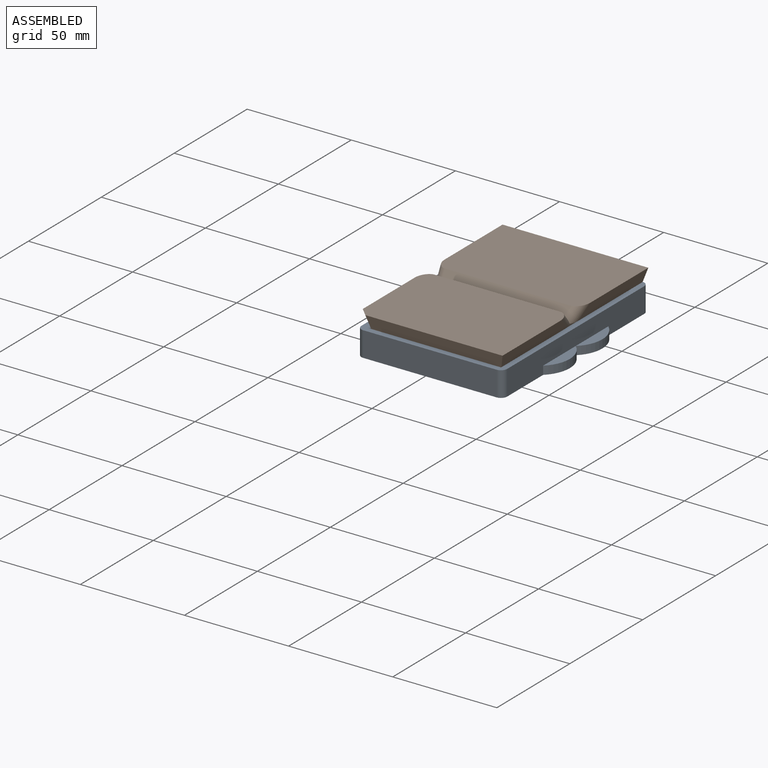
[diagram: assembled view]
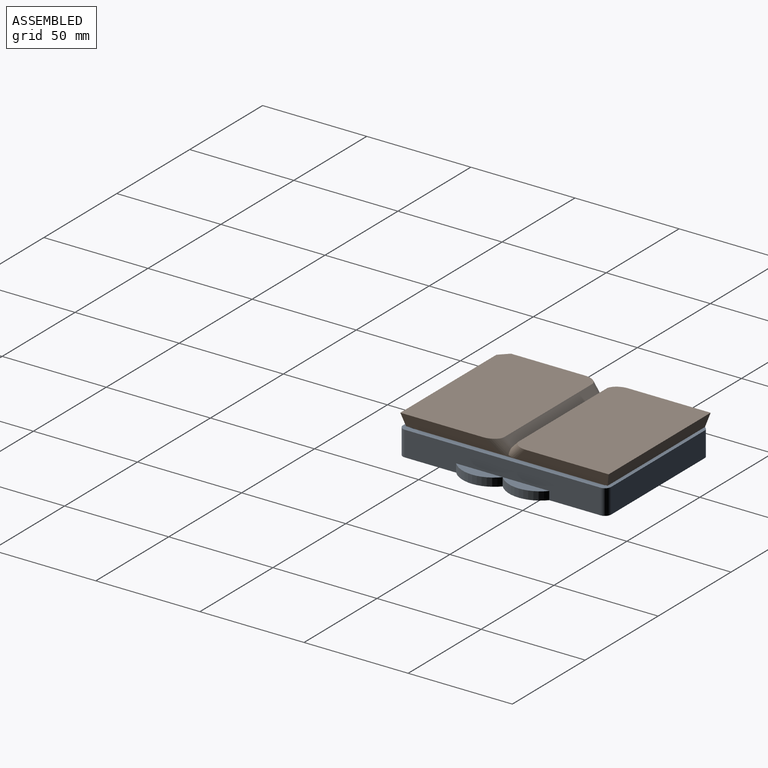
[diagram: assembled view, second angle]
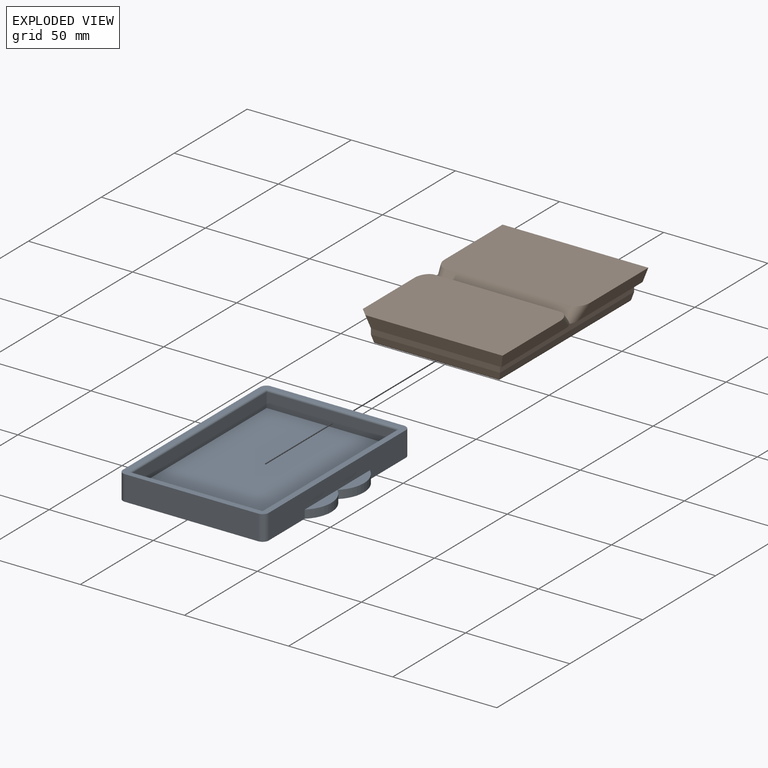
[diagram: exploded view]
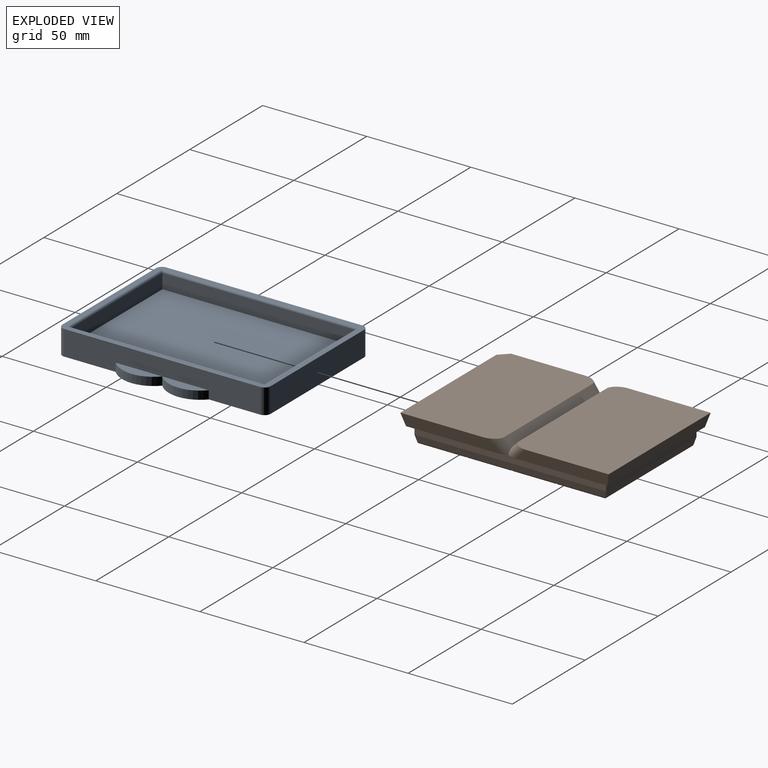
[diagram: exploded view, second angle]
ASSEMBLY  parts=2 mates=2
PART A: 27 faces, bbox 80x100x12 mm
  f0: plane 94x12mm, normal (-1,0,0), area 949.1mm2, adj f1,f5,f12,f13,f17,f18,f21,f22
  f1: plane 100x70mm, normal (0,0,1), area 817.3mm2, adj f0,f2,f3,f4,f11,f12,f13,f14
  f2: plane 94x12mm, normal (1,0,0), area 949.1mm2, adj f1,f5,f11,f14,f15,f16,f19,f20
  f3: plane 64x12mm, normal (0,1,0), area 768mm2, adj f1,f5,f11,f12
  f4: plane 64x12mm, normal (0,-1,0), area 768mm2, adj f1,f5,f13,f14
  f5: plane 100x80mm, normal (0,0,-1), area 7302mm2, adj f0,f2,f3,f4,f11,f12,f13,f14
  f6: plane 93x7mm, normal (-1,0,0), area 651mm2, adj f7,f9,f10,f23
  f7: plane 63x7mm, normal (0,-1,0), area 441mm2, adj f6,f8,f10,f24
  f8: plane 93x7mm, normal (1,0,0), area 651mm2, adj f7,f9,f10,f26
  f9: plane 63x7mm, normal (0,1,0), area 441mm2, adj f6,f8,f10,f25
  f10: plane 93x63mm, normal (0,0,1), area 5859mm2, adj f6,f7,f8,f9
  f11: cylinder r=3mm len=12mm, axis (0,0,1), area 56.5mm2, adj f1,f2,f3,f5
  f12: cylinder r=3mm len=12mm, axis (0,0,-1), area 56.5mm2, adj f0,f1,f3,f5
  f13: cylinder r=3mm len=12mm, axis (0,0,1), area 56.5mm2, adj f0,f1,f4,f5
  f14: cylinder r=3mm len=12mm, axis (0,0,-1), area 56.5mm2, adj f1,f2,f4,f5
  f15: cylinder r=15mm len=22.36mm, axis (0,0,-1), area 100.9mm2, adj f2,f5,f16,f19
  f16: plane 22.36x5mm, normal (0,0,1), area 77.4mm2, adj f2,f15
  f17: cylinder r=15mm len=22.36mm, axis (0,0,-1), area 100.9mm2, adj f0,f5,f18,f21
  f18: plane 22.36x5mm, normal (0,0,1), area 77.4mm2, adj f0,f17
  f19: cylinder r=15mm len=22.36mm, axis (0,0,-1), area 100.9mm2, adj f2,f5,f15,f20
  f20: plane 22.36x5mm, normal (0,0,1), area 77.4mm2, adj f2,f19
  f21: cylinder r=15mm len=22.36mm, axis (0,0,-1), area 100.9mm2, adj f0,f5,f17,f22
  f22: plane 22.36x5mm, normal (0,0,1), area 77.4mm2, adj f0,f21
  f23: cylinder r=1mm len=95mm, axis (0,-1,0), area 147.2mm2, adj f1,f6,f24,f25
  f24: cylinder r=1mm len=65mm, axis (1,0,0), area 100.1mm2, adj f1,f7,f23,f26
  f25: cylinder r=1mm len=65mm, axis (-1,0,0), area 100.1mm2, adj f1,f9,f23,f26
  f26: cylinder r=1mm len=95mm, axis (0,1,0), area 147.2mm2, adj f1,f8,f24,f25
PART B: 362 faces, bbox 70.1x100x17.9 mm
  f0: plane 45.81x6mm, normal (-0.97,0,0.26), area 260.9mm2, adj f9,f12,f13,f361
  f1: plane 45.81x6mm, normal (0.97,0,0.26), area 260.9mm2, adj f9,f12,f13,f359
  f2: plane 58.44x19.63mm, normal (0,0,1), area 336.4mm2, adj f5,f6,f215,f216,f217,f218,f219,f220
  f3: plane 58.44x21.79mm, normal (0,0,1), area 462.2mm2, adj f5,f6,f199,f200,f201,f202,f204,f205
  f4: plane 58.44x19.63mm, normal (0,0,1), area 336.4mm2, adj f5,f6,f271,f273,f274,f276,f277,f278
  f5: cylinder r=1mm len=90.38mm, axis (0,-1,0), area 114.9mm2, adj f2,f3,f4,f162,f346,f349,f350,f351
  f6: cylinder r=1mm len=90.38mm, axis (0,-1,0), area 114.9mm2, adj f2,f3,f4,f162,f343,f349,f350,f351
  f7: plane 70x46.5mm, normal (0,0,-1), area 3231.5mm2, adj f8,f10,f11,f348,f357,f358,f360
  f8: plane 41.68x6mm, normal (0.97,0,0.26), area 235.2mm2, adj f7,f12,f357,f358
  f9: plane 70x6mm, normal (0,0.97,0.26), area 424.8mm2, adj f0,f1,f12,f13
  f10: plane 45.81x6mm, normal (-0.97,0,0.26), area 260.9mm2, adj f7,f11,f12,f360
  f11: plane 65.87x6mm, normal (0,-0.97,0.26), area 399.2mm2, adj f7,f10,f12,f357
  f12: plane 96.78x66.78mm, normal (0,0,1), area 744.7mm2, adj f0,f1,f8,f9,f10,f11,f122,f123
  f13: plane 70x46.5mm, normal (0,0,-1), area 3240mm2, adj f0,f1,f9,f347,f359,f361
  f14: plane 15x4mm, normal (0,-1,0), area 60mm2, adj f15,f161,f163,f336
  f15: plane 4x3.3mm, normal (-1,0,0), area 13.2mm2, adj f14,f16,f163,f335
  f16: plane 15x4mm, normal (0,1,0), area 60mm2, adj f15,f161,f163,f337
  f17: plane 15x4mm, normal (0,-1,0), area 60mm2, adj f18,f125,f198,f332
  f18: plane 4x3.3mm, normal (-1,0,0), area 13.2mm2, adj f17,f19,f198,f331
  f19: plane 15x4mm, normal (0,1,0), area 60mm2, adj f18,f125,f198,f333
  f20: plane 4x3.3mm, normal (-1,0,0), area 13.2mm2, adj f21,f126,f197,f328
  f21: plane 15x4mm, normal (0,1,0), area 60mm2, adj f20,f22,f197,f327
  f22: plane 4x3.3mm, normal (1,0,0), area 13.2mm2, adj f21,f126,f197,f329
  f23: plane 4x3.3mm, normal (-1,0,0), area 13.2mm2, adj f24,f127,f196,f300
  f24: plane 15x4mm, normal (0,1,0), area 60mm2, adj f23,f25,f196,f299
  f25: plane 4x3.3mm, normal (1,0,0), area 13.2mm2, adj f24,f127,f196,f301
  f26: plane 4x3.3mm, normal (1,0,0), area 13.2mm2, adj f27,f128,f195,f296
  f27: plane 15x4mm, normal (0,-1,0), area 60mm2, adj f26,f28,f195,f295
  f28: plane 4x3.3mm, normal (-1,0,0), area 13.2mm2, adj f27,f128,f195,f297
  f29: plane 15x4mm, normal (0,1,0), area 60mm2, adj f30,f129,f194,f275
  f30: plane 4x3.3mm, normal (1,0,0), area 13.2mm2, adj f29,f31,f194,f276
  f31: plane 15x4mm, normal (0,-1,0), area 60mm2, adj f30,f129,f194,f278
  f32: plane 15x4mm, normal (0,1,0), area 60mm2, adj f33,f130,f193,f272
  f33: plane 4x3.3mm, normal (1,0,0), area 13.2mm2, adj f32,f34,f193,f271
  f34: plane 15x4mm, normal (0,-1,0), area 60mm2, adj f33,f130,f193,f273
  f35: plane 4x3.3mm, normal (-1,0,0), area 13.2mm2, adj f36,f131,f192,f264
  f36: plane 15x4mm, normal (0,1,0), area 60mm2, adj f35,f37,f192,f263
  f37: plane 4x3.3mm, normal (1,0,0), area 13.2mm2, adj f36,f131,f192,f265
  f38: plane 4x3.3mm, normal (-1,0,0), area 13.2mm2, adj f39,f132,f191,f252
  f39: plane 15x4mm, normal (0,1,0), area 60mm2, adj f38,f40,f191,f251
  f40: plane 4x3.3mm, normal (1,0,0), area 13.2mm2, adj f39,f132,f191,f253
  f41: plane 4x3.3mm, normal (1,0,0), area 13.2mm2, adj f42,f133,f190,f248
  f42: plane 15x4mm, normal (0,-1,0), area 60mm2, adj f41,f43,f190,f247
  f43: plane 4x3.3mm, normal (-1,0,0), area 13.2mm2, adj f42,f133,f190,f249
  f44: plane 4x3.3mm, normal (-1,0,0), area 13.2mm2, adj f45,f134,f189,f240
  f45: plane 15x4mm, normal (0,1,0), area 60mm2, adj f44,f46,f189,f239
  f46: plane 4x3.3mm, normal (1,0,0), area 13.2mm2, adj f45,f134,f189,f241
  f47: plane 4x3.3mm, normal (-1,0,0), area 13.2mm2, adj f48,f135,f188,f236
  f48: plane 15x4mm, normal (0,1,0), area 60mm2, adj f47,f49,f188,f235
  f49: plane 4x3.3mm, normal (1,0,0), area 13.2mm2, adj f48,f135,f188,f237
  f50: plane 4x3.3mm, normal (-1,0,0), area 13.2mm2, adj f51,f136,f187,f228
  f51: plane 15x4mm, normal (0,1,0), area 60mm2, adj f50,f52,f187,f227
  f52: plane 4x3.3mm, normal (1,0,0), area 13.2mm2, adj f51,f136,f187,f229
  f53: plane 4x3.3mm, normal (1,0,0), area 13.2mm2, adj f54,f137,f186,f220
  f54: plane 15x4mm, normal (0,-1,0), area 60mm2, adj f53,f55,f186,f219
  f55: plane 4x3.3mm, normal (-1,0,0), area 13.2mm2, adj f54,f137,f186,f221
  f56: plane 4x3.3mm, normal (-1,0,0), area 13.2mm2, adj f57,f138,f185,f208
  f57: plane 15x4mm, normal (0,1,0), area 60mm2, adj f56,f58,f185,f207
  f58: plane 4x3.3mm, normal (1,0,0), area 13.2mm2, adj f57,f138,f185,f209
  f59: plane 4x3.3mm, normal (1,0,0), area 13.2mm2, adj f60,f139,f184,f204
  f60: plane 15x4mm, normal (0,-1,0), area 60mm2, adj f59,f61,f184,f203
  f61: plane 4x3.3mm, normal (-1,0,0), area 13.2mm2, adj f60,f139,f184,f205
  f62: plane 15x4mm, normal (0,1,0), area 60mm2, adj f63,f140,f183,f199
  f63: plane 4x3.3mm, normal (1,0,0), area 13.2mm2, adj f62,f64,f183,f200
  f64: plane 15x4mm, normal (0,-1,0), area 60mm2, adj f63,f140,f183,f202
  f65: plane 15x4mm, normal (0,-1,0), area 60mm2, adj f66,f141,f182,f211
  f66: plane 4x3.3mm, normal (-1,0,0), area 13.2mm2, adj f65,f67,f182,f212
  f67: plane 15x4mm, normal (0,1,0), area 60mm2, adj f66,f141,f182,f214
  f68: plane 15x4mm, normal (0,-1,0), area 60mm2, adj f69,f142,f181,f215
  f69: plane 4x3.3mm, normal (-1,0,0), area 13.2mm2, adj f68,f70,f181,f216
  f70: plane 15x4mm, normal (0,1,0), area 60mm2, adj f69,f142,f181,f218
  f71: plane 15x4mm, normal (0,-1,0), area 60mm2, adj f72,f143,f180,f223
  f72: plane 4x3.3mm, normal (-1,0,0), area 13.2mm2, adj f71,f73,f180,f224
  f73: plane 15x4mm, normal (0,1,0), area 60mm2, adj f72,f143,f180,f226
  f74: plane 15x4mm, normal (0,-1,0), area 60mm2, adj f75,f144,f179,f231
  f75: plane 4x3.3mm, normal (-1,0,0), area 13.2mm2, adj f74,f76,f179,f232
  f76: plane 15x4mm, normal (0,1,0), area 60mm2, adj f75,f144,f179,f234
  f77: plane 15x4mm, normal (0,1,0), area 60mm2, adj f78,f145,f178,f243
  f78: plane 4x3.3mm, normal (1,0,0), area 13.2mm2, adj f77,f79,f178,f244
  f79: plane 15x4mm, normal (0,-1,0), area 60mm2, adj f78,f145,f178,f246
  f80: plane 15x4mm, normal (0,-1,0), area 60mm2, adj f81,f146,f177,f255
  f81: plane 4x3.3mm, normal (-1,0,0), area 13.2mm2, adj f80,f82,f177,f256
  f82: plane 15x4mm, normal (0,1,0), area 60mm2, adj f81,f146,f177,f258
  f83: plane 15x4mm, normal (0,1,0), area 60mm2, adj f84,f147,f176,f259
  f84: plane 4x3.3mm, normal (1,0,0), area 13.2mm2, adj f83,f85,f176,f260
  f85: plane 15x4mm, normal (0,-1,0), area 60mm2, adj f84,f147,f176,f262
  f86: plane 15x4mm, normal (0,-1,0), area 60mm2, adj f87,f148,f175,f267
  f87: plane 4x3.3mm, normal (-1,0,0), area 13.2mm2, adj f86,f88,f175,f268
  f88: plane 15x4mm, normal (0,1,0), area 60mm2, adj f87,f148,f175,f270
  f89: plane 4x3.3mm, normal (-1,0,0), area 13.2mm2, adj f90,f149,f174,f279
  f90: plane 15x4mm, normal (0,1,0), area 60mm2, adj f89,f91,f174,f280
  f91: plane 4x3.3mm, normal (1,0,0), area 13.2mm2, adj f90,f149,f174,f282
  f92: plane 4x3.3mm, normal (1,0,0), area 13.2mm2, adj f93,f150,f173,f283
  f93: plane 15x4mm, normal (0,-1,0), area 60mm2, adj f92,f94,f173,f284
  f94: plane 4x3.3mm, normal (-1,0,0), area 13.2mm2, adj f93,f150,f173,f286
  f95: plane 15x4mm, normal (0,-1,0), area 60mm2, adj f96,f151,f172,f287
  f96: plane 4x3.3mm, normal (-1,0,0), area 13.2mm2, adj f95,f97,f172,f288
  f97: plane 15x4mm, normal (0,1,0), area 60mm2, adj f96,f151,f172,f290
  f98: plane 15x4mm, normal (0,1,0), area 60mm2, adj f99,f152,f171,f292
  f99: plane 4x3.3mm, normal (1,0,0), area 13.2mm2, adj f98,f100,f171,f291
  f100: plane 15x4mm, normal (0,-1,0), area 60mm2, adj f99,f152,f171,f293
  f101: plane 15x4mm, normal (0,-1,0), area 60mm2, adj f102,f153,f170,f305
  f102: plane 4x3.3mm, normal (-1,0,0), area 13.2mm2, adj f101,f103,f170,f306
  f103: plane 15x4mm, normal (0,1,0), area 60mm2, adj f102,f153,f170,f304
  f104: plane 4x3.3mm, normal (1,0,0), area 13.2mm2, adj f105,f154,f169,f307
  f105: plane 15x4mm, normal (0,-1,0), area 60mm2, adj f104,f106,f169,f308
  f106: plane 4x3.3mm, normal (-1,0,0), area 13.2mm2, adj f105,f154,f169,f310
  f107: plane 15x4mm, normal (0,1,0), area 60mm2, adj f108,f155,f168,f313
  f108: plane 4x3.3mm, normal (1,0,0), area 13.2mm2, adj f107,f109,f168,f314
  f109: plane 15x4mm, normal (0,-1,0), area 60mm2, adj f108,f155,f168,f312
  f110: plane 15x4mm, normal (0,-1,0), area 60mm2, adj f111,f156,f167,f315
  f111: plane 4x3.3mm, normal (-1,0,0), area 13.2mm2, adj f110,f112,f167,f316
  f112: plane 15x4mm, normal (0,1,0), area 60mm2, adj f111,f156,f167,f318
  f113: plane 4x3.3mm, normal (-1,0,0), area 13.2mm2, adj f114,f157,f166,f319
  f114: plane 15x4mm, normal (0,1,0), area 60mm2, adj f113,f115,f166,f320
  f115: plane 4x3.3mm, normal (1,0,0), area 13.2mm2, adj f114,f157,f166,f322
  f116: plane 4x3.3mm, normal (-1,0,0), area 13.2mm2, adj f117,f158,f165,f325
  f117: plane 15x4mm, normal (0,1,0), area 60mm2, adj f116,f118,f165,f326
  f118: plane 4x3.3mm, normal (1,0,0), area 13.2mm2, adj f117,f158,f165,f324
  f119: plane 15x4mm, normal (0,-1,0), area 60mm2, adj f120,f159,f164,f340
  f120: plane 4x3.3mm, normal (-1,0,0), area 13.2mm2, adj f119,f121,f164,f339
  f121: plane 15x4mm, normal (0,1,0), area 60mm2, adj f120,f159,f164,f341
  f122: plane 92x4mm, normal (1,0,0), area 368mm2, adj f12,f123,f160,f343
  f123: plane 62x4mm, normal (0,1,0), area 248mm2, adj f12,f122,f124,f344
  f124: plane 92x4mm, normal (-1,0,0), area 368mm2, adj f12,f123,f160,f346
  f125: plane 4x3.3mm, normal (1,0,0), area 13.2mm2, adj f17,f19,f198,f334
  f126: plane 15x4mm, normal (0,-1,0), area 60mm2, adj f20,f22,f197,f330
  f127: plane 15x4mm, normal (0,-1,0), area 60mm2, adj f23,f25,f196,f302
  f128: plane 15x4mm, normal (0,1,0), area 60mm2, adj f26,f28,f195,f298
  f129: plane 4x3.3mm, normal (-1,0,0), area 13.2mm2, adj f29,f31,f194,f277
  f130: plane 4x3.3mm, normal (-1,0,0), area 13.2mm2, adj f32,f34,f193,f274
  f131: plane 15x4mm, normal (0,-1,0), area 60mm2, adj f35,f37,f192,f266
  f132: plane 15x4mm, normal (0,-1,0), area 60mm2, adj f38,f40,f191,f254
  f133: plane 15x4mm, normal (0,1,0), area 60mm2, adj f41,f43,f190,f250
  f134: plane 15x4mm, normal (0,-1,0), area 60mm2, adj f44,f46,f189,f242
  f135: plane 15x4mm, normal (0,-1,0), area 60mm2, adj f47,f49,f188,f238
  f136: plane 15x4mm, normal (0,-1,0), area 60mm2, adj f50,f52,f187,f230
  f137: plane 15x4mm, normal (0,1,0), area 60mm2, adj f53,f55,f186,f222
  f138: plane 15x4mm, normal (0,-1,0), area 60mm2, adj f56,f58,f185,f210
  f139: plane 15x4mm, normal (0,1,0), area 60mm2, adj f59,f61,f184,f206
  f140: plane 4x3.3mm, normal (-1,0,0), area 13.2mm2, adj f62,f64,f183,f201
  f141: plane 4x3.3mm, normal (1,0,0), area 13.2mm2, adj f65,f67,f182,f213
  f142: plane 4x3.3mm, normal (1,0,0), area 13.2mm2, adj f68,f70,f181,f217
  f143: plane 4x3.3mm, normal (1,0,0), area 13.2mm2, adj f71,f73,f180,f225
  f144: plane 4x3.3mm, normal (1,0,0), area 13.2mm2, adj f74,f76,f179,f233
  f145: plane 4x3.3mm, normal (-1,0,0), area 13.2mm2, adj f77,f79,f178,f245
  f146: plane 4x3.3mm, normal (1,0,0), area 13.2mm2, adj f80,f82,f177,f257
  f147: plane 4x3.3mm, normal (-1,0,0), area 13.2mm2, adj f83,f85,f176,f261
  f148: plane 4x3.3mm, normal (1,0,0), area 13.2mm2, adj f86,f88,f175,f269
  f149: plane 15x4mm, normal (0,-1,0), area 60mm2, adj f89,f91,f174,f281
  f150: plane 15x4mm, normal (0,1,0), area 60mm2, adj f92,f94,f173,f285
  f151: plane 4x3.3mm, normal (1,0,0), area 13.2mm2, adj f95,f97,f172,f289
  f152: plane 4x3.3mm, normal (-1,0,0), area 13.2mm2, adj f98,f100,f171,f294
  f153: plane 4x3.3mm, normal (1,0,0), area 13.2mm2, adj f101,f103,f170,f303
  f154: plane 15x4mm, normal (0,1,0), area 60mm2, adj f104,f106,f169,f309
  f155: plane 4x3.3mm, normal (-1,0,0), area 13.2mm2, adj f107,f109,f168,f311
  f156: plane 4x3.3mm, normal (1,0,0), area 13.2mm2, adj f110,f112,f167,f317
  f157: plane 15x4mm, normal (0,-1,0), area 60mm2, adj f113,f115,f166,f321
  f158: plane 15x4mm, normal (0,-1,0), area 60mm2, adj f116,f118,f165,f323
  f159: plane 4x3.3mm, normal (1,0,0), area 13.2mm2, adj f119,f121,f164,f342
  f160: plane 62x4mm, normal (0,-1,0), area 248mm2, adj f12,f122,f124,f345
  f161: plane 4x3.3mm, normal (1,0,0), area 13.2mm2, adj f14,f16,f163,f338
  f162: plane 58.44x21.79mm, normal (0,0,1), area 462.2mm2, adj f5,f6,f307,f308,f310,f311,f312,f314
  f163: plane 15x3.3mm, normal (0,0,1), area 49.5mm2, adj f14,f15,f16,f161
  f164: plane 15x3.3mm, normal (0,0,1), area 49.5mm2, adj f119,f120,f121,f159
  f165: plane 15x3.3mm, normal (0,0,1), area 49.5mm2, adj f116,f117,f118,f158
  f166: plane 15x3.3mm, normal (0,0,1), area 49.5mm2, adj f113,f114,f115,f157
  f167: plane 15x3.3mm, normal (0,0,1), area 49.5mm2, adj f110,f111,f112,f156
  f168: plane 15x3.3mm, normal (0,0,1), area 49.5mm2, adj f107,f108,f109,f155
  f169: plane 15x3.3mm, normal (0,0,1), area 49.5mm2, adj f104,f105,f106,f154
  f170: plane 15x3.3mm, normal (0,0,1), area 49.5mm2, adj f101,f102,f103,f153
  f171: plane 15x3.3mm, normal (0,0,1), area 49.5mm2, adj f98,f99,f100,f152
  f172: plane 15x3.3mm, normal (0,0,1), area 49.5mm2, adj f95,f96,f97,f151
  f173: plane 15x3.3mm, normal (0,0,1), area 49.5mm2, adj f92,f93,f94,f150
  f174: plane 15x3.3mm, normal (0,0,1), area 49.5mm2, adj f89,f90,f91,f149
  f175: plane 15x3.3mm, normal (0,0,1), area 49.5mm2, adj f86,f87,f88,f148
  f176: plane 15x3.3mm, normal (0,0,1), area 49.5mm2, adj f83,f84,f85,f147
  f177: plane 15x3.3mm, normal (0,0,1), area 49.5mm2, adj f80,f81,f82,f146
  f178: plane 15x3.3mm, normal (0,0,1), area 49.5mm2, adj f77,f78,f79,f145
  f179: plane 15x3.3mm, normal (0,0,1), area 49.5mm2, adj f74,f75,f76,f144
  f180: plane 15x3.3mm, normal (0,0,1), area 49.5mm2, adj f71,f72,f73,f143
  f181: plane 15x3.3mm, normal (0,0,1), area 49.5mm2, adj f68,f69,f70,f142
  f182: plane 15x3.3mm, normal (0,0,1), area 49.5mm2, adj f65,f66,f67,f141
  f183: plane 15x3.3mm, normal (0,0,1), area 49.5mm2, adj f62,f63,f64,f140
  f184: plane 15x3.3mm, normal (0,0,1), area 49.5mm2, adj f59,f60,f61,f139
  f185: plane 15x3.3mm, normal (0,0,1), area 49.5mm2, adj f56,f57,f58,f138
  f186: plane 15x3.3mm, normal (0,0,1), area 49.5mm2, adj f53,f54,f55,f137
  f187: plane 15x3.3mm, normal (0,0,1), area 49.5mm2, adj f50,f51,f52,f136
  f188: plane 15x3.3mm, normal (0,0,1), area 49.5mm2, adj f47,f48,f49,f135
  f189: plane 15x3.3mm, normal (0,0,1), area 49.5mm2, adj f44,f45,f46,f134
  f190: plane 15x3.3mm, normal (0,0,1), area 49.5mm2, adj f41,f42,f43,f133
  f191: plane 15x3.3mm, normal (0,0,1), area 49.5mm2, adj f38,f39,f40,f132
  f192: plane 15x3.3mm, normal (0,0,1), area 49.5mm2, adj f35,f36,f37,f131
  f193: plane 15x3.3mm, normal (0,0,1), area 49.5mm2, adj f32,f33,f34,f130
  f194: plane 15x3.3mm, normal (0,0,1), area 49.5mm2, adj f29,f30,f31,f129
  f195: plane 15x3.3mm, normal (0,0,1), area 49.5mm2, adj f26,f27,f28,f128
  f196: plane 15x3.3mm, normal (0,0,1), area 49.5mm2, adj f23,f24,f25,f127
  f197: plane 15x3.3mm, normal (0,0,1), area 49.5mm2, adj f20,f21,f22,f126
  f198: plane 15x3.3mm, normal (0,0,1), area 49.5mm2, adj f17,f18,f19,f125
  f199: plane 17x4mm, normal (0,0.97,0.24), area 66mm2, adj f3,f62,f200,f201
  f200: plane 5.3x4mm, normal (0.97,0,0.24), area 17.7mm2, adj f3,f63,f199,f202
  f201: plane 5.3x4mm, normal (-0.97,0,0.24), area 17.7mm2, adj f3,f140,f199,f202
  f202: plane 17x4mm, normal (0,-0.97,0.24), area 66mm2, adj f3,f64,f200,f201
  f203: plane 17x4mm, normal (0,-0.97,0.24), area 66mm2, adj f60,f204,f205,f356
  f204: plane 5.3x4mm, normal (0.97,0,0.24), area 17.7mm2, adj f3,f59,f203,f206
  f205: plane 5.3x4mm, normal (-0.97,0,0.24), area 17.7mm2, adj f3,f61,f203,f206
  f206: plane 17x4mm, normal (0,0.97,0.24), area 66mm2, adj f3,f139,f204,f205
  f207: plane 17x4mm, normal (0,0.97,0.24), area 66mm2, adj f3,f57,f208,f209
  f208: plane 5.3x4mm, normal (-0.97,0,0.24), area 17.7mm2, adj f3,f56,f207,f210
  f209: plane 5.3x4mm, normal (0.97,0,0.24), area 17.7mm2, adj f3,f58,f207,f210
  f210: plane 17x4mm, normal (0,-0.97,0.24), area 66mm2, adj f138,f208,f209,f356
  f211: plane 17x4mm, normal (0,-0.97,0.24), area 66mm2, adj f3,f65,f212,f213
  f212: plane 5.3x4mm, normal (-0.97,0,0.24), area 17.7mm2, adj f3,f66,f211,f214
  f213: plane 5.3x4mm, normal (0.97,0,0.24), area 17.7mm2, adj f3,f141,f211,f214
  f214: plane 17x4mm, normal (0,0.97,0.24), area 66mm2, adj f3,f67,f212,f213
  f215: plane 17x4mm, normal (0,-0.97,0.24), area 66mm2, adj f2,f68,f216,f217
  f216: plane 5.3x4mm, normal (-0.97,0,0.24), area 17.7mm2, adj f2,f69,f215,f218
  f217: plane 5.3x4mm, normal (0.97,0,0.24), area 17.7mm2, adj f2,f142,f215,f218
  f218: plane 17x4mm, normal (0,0.97,0.24), area 66mm2, adj f2,f70,f216,f217
  f219: plane 17x4mm, normal (0,-0.97,0.24), area 66mm2, adj f2,f54,f220,f221
  f220: plane 5.3x4mm, normal (0.97,0,0.24), area 17.7mm2, adj f2,f53,f219,f222
  f221: plane 5.3x4mm, normal (-0.97,0,0.24), area 17.7mm2, adj f2,f55,f219,f222
  f222: plane 17x4mm, normal (0,0.97,0.24), area 66mm2, adj f2,f137,f220,f221
  f223: plane 17x4mm, normal (0,-0.97,0.24), area 66mm2, adj f71,f224,f225,f353
  f224: plane 5.3x4mm, normal (-0.97,0,0.24), area 17.7mm2, adj f2,f72,f223,f226
  f225: plane 5.3x4mm, normal (0.97,0,0.24), area 17.7mm2, adj f2,f143,f223,f226
  f226: plane 17x4mm, normal (0,0.97,0.24), area 66mm2, adj f2,f73,f224,f225
  f227: plane 17x4mm, normal (0,0.97,0.24), area 66mm2, adj f51,f228,f229,f355
  f228: plane 5.3x4mm, normal (-0.97,0,0.24), area 17.7mm2, adj f2,f50,f227,f230
  f229: plane 5.3x4mm, normal (0.97,0,0.24), area 17.7mm2, adj f2,f52,f227,f230
  f230: plane 17x4mm, normal (0,-0.97,0.24), area 66mm2, adj f2,f136,f228,f229
  f231: plane 17x4mm, normal (0,-0.97,0.24), area 66mm2, adj f3,f74,f232,f233
  f232: plane 5.3x4mm, normal (-0.97,0,0.24), area 17.7mm2, adj f3,f75,f231,f234
  f233: plane 5.3x4mm, normal (0.97,0,0.24), area 17.7mm2, adj f3,f144,f231,f234
  f234: plane 17x4mm, normal (0,0.97,0.24), area 66mm2, adj f3,f76,f232,f233
  f235: plane 17x4mm, normal (0,0.97,0.24), area 66mm2, adj f2,f48,f236,f237
  f236: plane 5.3x4mm, normal (-0.97,0,0.24), area 17.7mm2, adj f2,f47,f235,f238
  f237: plane 5.3x4mm, normal (0.97,0,0.24), area 17.7mm2, adj f2,f49,f235,f238
  f238: plane 17x4mm, normal (0,-0.97,0.24), area 66mm2, adj f135,f236,f237,f353
  f239: plane 17x4mm, normal (0,0.97,0.24), area 66mm2, adj f2,f45,f240,f241
  f240: plane 5.3x4mm, normal (-0.97,0,0.24), area 17.7mm2, adj f2,f44,f239,f242
  f241: plane 5.3x4mm, normal (0.97,0,0.24), area 17.7mm2, adj f2,f46,f239,f242
  f242: plane 17x4mm, normal (0,-0.97,0.24), area 66mm2, adj f2,f134,f240,f241
  f243: plane 17x4mm, normal (0,0.97,0.24), area 66mm2, adj f2,f77,f244,f245
  f244: plane 5.3x4mm, normal (0.97,0,0.24), area 17.7mm2, adj f2,f78,f243,f246
  f245: plane 5.3x4mm, normal (-0.97,0,0.24), area 17.7mm2, adj f2,f145,f243,f246
  f246: plane 17x4mm, normal (0,-0.97,0.24), area 66mm2, adj f79,f244,f245,f353
  f247: plane 17x4mm, normal (0,-0.97,0.24), area 66mm2, adj f2,f42,f248,f249
  f248: plane 5.3x4mm, normal (0.97,0,0.24), area 17.7mm2, adj f2,f41,f247,f250
  f249: plane 5.3x4mm, normal (-0.97,0,0.24), area 17.7mm2, adj f2,f43,f247,f250
  f250: plane 17x4mm, normal (0,0.97,0.24), area 66mm2, adj f133,f248,f249,f355
  f251: plane 17x4mm, normal (0,0.97,0.24), area 66mm2, adj f3,f39,f252,f253
  f252: plane 5.3x4mm, normal (-0.97,0,0.24), area 17.7mm2, adj f3,f38,f251,f254
  f253: plane 5.3x4mm, normal (0.97,0,0.24), area 17.7mm2, adj f3,f40,f251,f254
  f254: plane 17x4mm, normal (0,-0.97,0.24), area 66mm2, adj f132,f252,f253,f356
  f255: plane 17x4mm, normal (0,-0.97,0.24), area 66mm2, adj f3,f80,f256,f257
  f256: plane 5.3x4mm, normal (-0.97,0,0.24), area 17.7mm2, adj f3,f81,f255,f258
  f257: plane 5.3x4mm, normal (0.97,0,0.24), area 17.7mm2, adj f3,f146,f255,f258
  f258: plane 17x4mm, normal (0,0.97,0.24), area 66mm2, adj f3,f82,f256,f257
  f259: plane 17x4mm, normal (0,0.97,0.24), area 66mm2, adj f3,f83,f260,f261
  f260: plane 5.3x4mm, normal (0.97,0,0.24), area 17.7mm2, adj f3,f84,f259,f262
  f261: plane 5.3x4mm, normal (-0.97,0,0.24), area 17.7mm2, adj f3,f147,f259,f262
  f262: plane 17x4mm, normal (0,-0.97,0.24), area 66mm2, adj f3,f85,f260,f261
  f263: plane 17x4mm, normal (0,0.97,0.24), area 66mm2, adj f36,f264,f265,f355
  f264: plane 5.3x4mm, normal (-0.97,0,0.24), area 17.7mm2, adj f2,f35,f263,f266
  f265: plane 5.3x4mm, normal (0.97,0,0.24), area 17.7mm2, adj f2,f37,f263,f266
  f266: plane 17x4mm, normal (0,-0.97,0.24), area 66mm2, adj f2,f131,f264,f265
  f267: plane 17x4mm, normal (0,-0.97,0.24), area 66mm2, adj f3,f86,f268,f269
  f268: plane 5.3x4mm, normal (-0.97,0,0.24), area 17.7mm2, adj f3,f87,f267,f270
  f269: plane 5.3x4mm, normal (0.97,0,0.24), area 17.7mm2, adj f3,f148,f267,f270
  f270: plane 17x4mm, normal (0,0.97,0.24), area 66mm2, adj f3,f88,f268,f269
  f271: plane 5.3x4mm, normal (0.97,0,0.24), area 17.7mm2, adj f4,f33,f272,f273
  f272: plane 17x4mm, normal (0,0.97,0.24), area 66mm2, adj f32,f271,f274,f354
  f273: plane 17x4mm, normal (0,-0.97,0.24), area 66mm2, adj f4,f34,f271,f274
  f274: plane 5.3x4mm, normal (-0.97,0,0.24), area 17.7mm2, adj f4,f130,f272,f273
  f275: plane 17x4mm, normal (0,0.97,0.24), area 66mm2, adj f29,f276,f277,f354
  f276: plane 5.3x4mm, normal (0.97,0,0.24), area 17.7mm2, adj f4,f30,f275,f278
  f277: plane 5.3x4mm, normal (-0.97,0,0.24), area 17.7mm2, adj f4,f129,f275,f278
  f278: plane 17x4mm, normal (0,-0.97,0.24), area 66mm2, adj f4,f31,f276,f277
  f279: plane 5.3x4mm, normal (-0.97,0,0.24), area 17.7mm2, adj f4,f89,f280,f281
  f280: plane 17x4mm, normal (0,0.97,0.24), area 66mm2, adj f90,f279,f282,f354
  f281: plane 17x4mm, normal (0,-0.97,0.24), area 66mm2, adj f4,f149,f279,f282
  f282: plane 5.3x4mm, normal (0.97,0,0.24), area 17.7mm2, adj f4,f91,f280,f281
  f283: plane 5.3x4mm, normal (0.97,0,0.24), area 17.7mm2, adj f4,f92,f284,f285
  f284: plane 17x4mm, normal (0,-0.97,0.24), area 66mm2, adj f4,f93,f283,f286
  f285: plane 17x4mm, normal (0,0.97,0.24), area 66mm2, adj f4,f150,f283,f286
  f286: plane 5.3x4mm, normal (-0.97,0,0.24), area 17.7mm2, adj f4,f94,f284,f285
  f287: plane 17x4mm, normal (0,-0.97,0.24), area 66mm2, adj f95,f288,f289,f351
  f288: plane 5.3x4mm, normal (-0.97,0,0.24), area 17.7mm2, adj f4,f96,f287,f290
  f289: plane 5.3x4mm, normal (0.97,0,0.24), area 17.7mm2, adj f4,f151,f287,f290
  f290: plane 17x4mm, normal (0,0.97,0.24), area 66mm2, adj f4,f97,f288,f289
  f291: plane 5.3x4mm, normal (0.97,0,0.24), area 17.7mm2, adj f4,f99,f292,f293
  f292: plane 17x4mm, normal (0,0.97,0.24), area 66mm2, adj f4,f98,f291,f294
  f293: plane 17x4mm, normal (0,-0.97,0.24), area 66mm2, adj f100,f291,f294,f351
  f294: plane 5.3x4mm, normal (-0.97,0,0.24), area 17.7mm2, adj f4,f152,f292,f293
  f295: plane 17x4mm, normal (0,-0.97,0.24), area 66mm2, adj f4,f27,f296,f297
  f296: plane 5.3x4mm, normal (0.97,0,0.24), area 17.7mm2, adj f4,f26,f295,f298
  f297: plane 5.3x4mm, normal (-0.97,0,0.24), area 17.7mm2, adj f4,f28,f295,f298
  f298: plane 17x4mm, normal (0,0.97,0.24), area 66mm2, adj f4,f128,f296,f297
  f299: plane 17x4mm, normal (0,0.97,0.24), area 66mm2, adj f4,f24,f300,f301
  f300: plane 5.3x4mm, normal (-0.97,0,0.24), area 17.7mm2, adj f4,f23,f299,f302
  f301: plane 5.3x4mm, normal (0.97,0,0.24), area 17.7mm2, adj f4,f25,f299,f302
  f302: plane 17x4mm, normal (0,-0.97,0.24), area 66mm2, adj f4,f127,f300,f301
  f303: plane 5.3x4mm, normal (0.97,0,0.24), area 17.7mm2, adj f4,f153,f304,f305
  f304: plane 17x4mm, normal (0,0.97,0.24), area 66mm2, adj f4,f103,f303,f306
  f305: plane 17x4mm, normal (0,-0.97,0.24), area 66mm2, adj f101,f303,f306,f351
  f306: plane 5.3x4mm, normal (-0.97,0,0.24), area 17.7mm2, adj f4,f102,f304,f305
  f307: plane 5.3x4mm, normal (0.97,0,0.24), area 17.7mm2, adj f104,f162,f308,f309
  f308: plane 17x4mm, normal (0,-0.97,0.24), area 66mm2, adj f105,f162,f307,f310
  f309: plane 17x4mm, normal (0,0.97,0.24), area 66mm2, adj f154,f307,f310,f352
  f310: plane 5.3x4mm, normal (-0.97,0,0.24), area 17.7mm2, adj f106,f162,f308,f309
  f311: plane 5.3x4mm, normal (-0.97,0,0.24), area 17.7mm2, adj f155,f162,f312,f313
  f312: plane 17x4mm, normal (0,-0.97,0.24), area 66mm2, adj f109,f162,f311,f314
  f313: plane 17x4mm, normal (0,0.97,0.24), area 66mm2, adj f107,f311,f314,f352
  f314: plane 5.3x4mm, normal (0.97,0,0.24), area 17.7mm2, adj f108,f162,f312,f313
  f315: plane 17x4mm, normal (0,-0.97,0.24), area 66mm2, adj f110,f162,f316,f317
  f316: plane 5.3x4mm, normal (-0.97,0,0.24), area 17.7mm2, adj f111,f162,f315,f318
  f317: plane 5.3x4mm, normal (0.97,0,0.24), area 17.7mm2, adj f156,f162,f315,f318
  f318: plane 17x4mm, normal (0,0.97,0.24), area 66mm2, adj f112,f316,f317,f352
  f319: plane 5.3x4mm, normal (-0.97,0,0.24), area 17.7mm2, adj f113,f162,f320,f321
  f320: plane 17x4mm, normal (0,0.97,0.24), area 66mm2, adj f114,f162,f319,f322
  f321: plane 17x4mm, normal (0,-0.97,0.24), area 66mm2, adj f157,f162,f319,f322
  f322: plane 5.3x4mm, normal (0.97,0,0.24), area 17.7mm2, adj f115,f162,f320,f321
  f323: plane 17x4mm, normal (0,-0.97,0.24), area 66mm2, adj f158,f162,f324,f325
  f324: plane 5.3x4mm, normal (0.97,0,0.24), area 17.7mm2, adj f118,f162,f323,f326
  f325: plane 5.3x4mm, normal (-0.97,0,0.24), area 17.7mm2, adj f116,f162,f323,f326
  f326: plane 17x4mm, normal (0,0.97,0.24), area 66mm2, adj f117,f162,f324,f325
  f327: plane 17x4mm, normal (0,0.97,0.24), area 66mm2, adj f21,f162,f328,f329
  f328: plane 5.3x4mm, normal (-0.97,0,0.24), area 17.7mm2, adj f20,f162,f327,f330
  f329: plane 5.3x4mm, normal (0.97,0,0.24), area 17.7mm2, adj f22,f162,f327,f330
  f330: plane 17x4mm, normal (0,-0.97,0.24), area 66mm2, adj f126,f162,f328,f329
  f331: plane 5.3x4mm, normal (-0.97,0,0.24), area 17.7mm2, adj f18,f162,f332,f333
  f332: plane 17x4mm, normal (0,-0.97,0.24), area 66mm2, adj f17,f162,f331,f334
  f333: plane 17x4mm, normal (0,0.97,0.24), area 66mm2, adj f19,f162,f331,f334
  f334: plane 5.3x4mm, normal (0.97,0,0.24), area 17.7mm2, adj f125,f162,f332,f333
  f335: plane 5.3x4mm, normal (-0.97,0,0.24), area 17.7mm2, adj f15,f162,f336,f337
  f336: plane 17x4mm, normal (0,-0.97,0.24), area 66mm2, adj f14,f162,f335,f338
  f337: plane 17x4mm, normal (0,0.97,0.24), area 66mm2, adj f16,f162,f335,f338
  f338: plane 5.3x4mm, normal (0.97,0,0.24), area 17.7mm2, adj f161,f162,f336,f337
  f339: plane 5.3x4mm, normal (-0.97,0,0.24), area 17.7mm2, adj f120,f162,f340,f341
  f340: plane 17x4mm, normal (0,-0.97,0.24), area 66mm2, adj f119,f162,f339,f342
  f341: plane 17x4mm, normal (0,0.97,0.24), area 66mm2, adj f121,f162,f339,f342
  f342: plane 5.3x4mm, normal (0.97,0,0.24), area 17.7mm2, adj f159,f162,f340,f341
  f343: plane 92x3.24mm, normal (0.97,0,0.24), area 304.8mm2, adj f6,f122,f344,f345
  f344: plane 62x3.24mm, normal (0,0.97,0.24), area 204.5mm2, adj f123,f343,f346,f349
  f345: plane 62x3.24mm, normal (0,-0.97,0.24), area 204.5mm2, adj f160,f343,f346,f350
  f346: plane 92x3.24mm, normal (-0.97,0,0.24), area 304.8mm2, adj f5,f124,f344,f345
  f347: plane 60.2x3.5mm, normal (0,-0.71,-0.71), area 293.3mm2, adj f13,f348,f359,f361
  f348: plane 60.2x3.5mm, normal (0,0.71,-0.71), area 293.3mm2, adj f7,f347,f358,f360
  f349: cylinder r=1mm len=60.38mm, axis (-1,0,0), area 79mm2, adj f5,f6,f162,f344
  f350: cylinder r=1mm len=60.38mm, axis (-1,0,0), area 79mm2, adj f3,f5,f6,f345
  f351: plane 60.17x0.93mm, normal (0,0.47,0.88), area 63.2mm2, adj f4,f5,f6,f287,f293,f305,f352
  f352: plane 60.17x0.93mm, normal (0,-0.47,0.88), area 63.2mm2, adj f5,f6,f162,f309,f313,f318,f351
  f353: plane 60.17x0.93mm, normal (0,0.47,0.88), area 63.2mm2, adj f2,f5,f6,f223,f238,f246,f354
  f354: plane 60.17x0.93mm, normal (0,-0.47,0.88), area 63.2mm2, adj f4,f5,f6,f272,f275,f280,f353
  f355: plane 60.17x0.93mm, normal (0,-0.47,0.88), area 63.2mm2, adj f2,f5,f6,f227,f250,f263,f356
  f356: plane 60.17x0.93mm, normal (0,0.47,0.88), area 63.2mm2, adj f3,f5,f6,f203,f210,f254,f355
  f357: plane 6x5.74mm, normal (0.66,-0.66,0.35), area 37.5mm2, adj f7,f8,f11,f12
  f358: cylinder r=4mm len=12.04mm, axis (-0.19,0.69,0.69), area 51.4mm2, adj f7,f8,f12,f348,f359
  f359: cylinder r=4mm len=12.04mm, axis (0.19,0.69,-0.69), area 51.4mm2, adj f1,f12,f13,f347,f358
  f360: cylinder r=4mm len=12.04mm, axis (0.19,0.69,0.69), area 51.4mm2, adj f7,f10,f12,f348,f361
  f361: cylinder r=4mm len=12.04mm, axis (-0.19,0.69,-0.69), area 51.4mm2, adj f0,f12,f13,f347,f360
PLACE A t=(-45.36,-16.88,-57.96)mm
PLACE B rot(axis=(0,1,0),180deg) t=(-45.86,-16.38,-39.42)mm
MATE planar B.f123 <-> A.f7  axis (0,1,0) through (-45.86,29.62,-47.42)mm
MATE planar A.f8 <-> B.f122  axis (1,0,0) through (-76.86,-16.88,-50.46)mm
